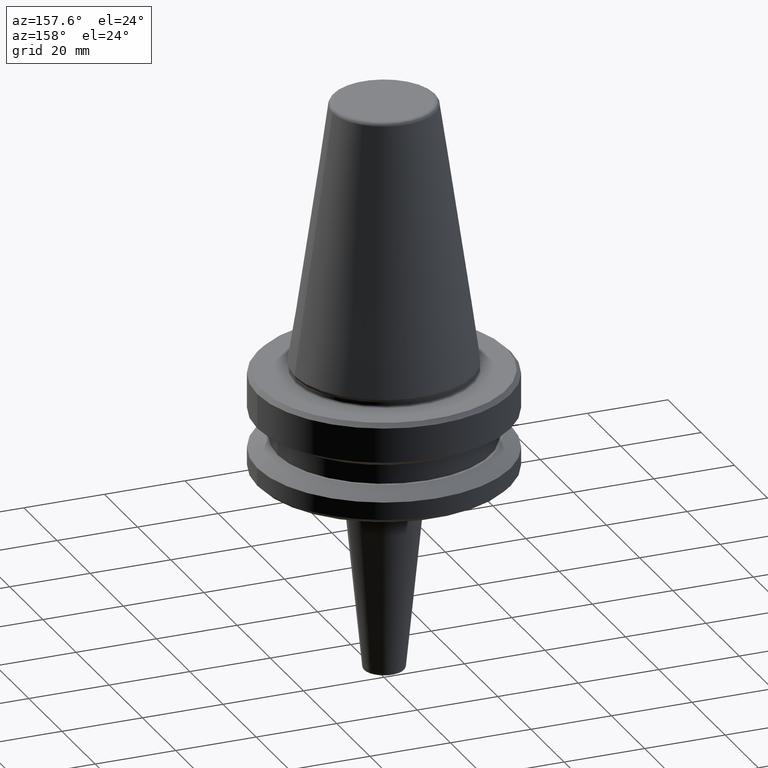
[diagram: clean part render]
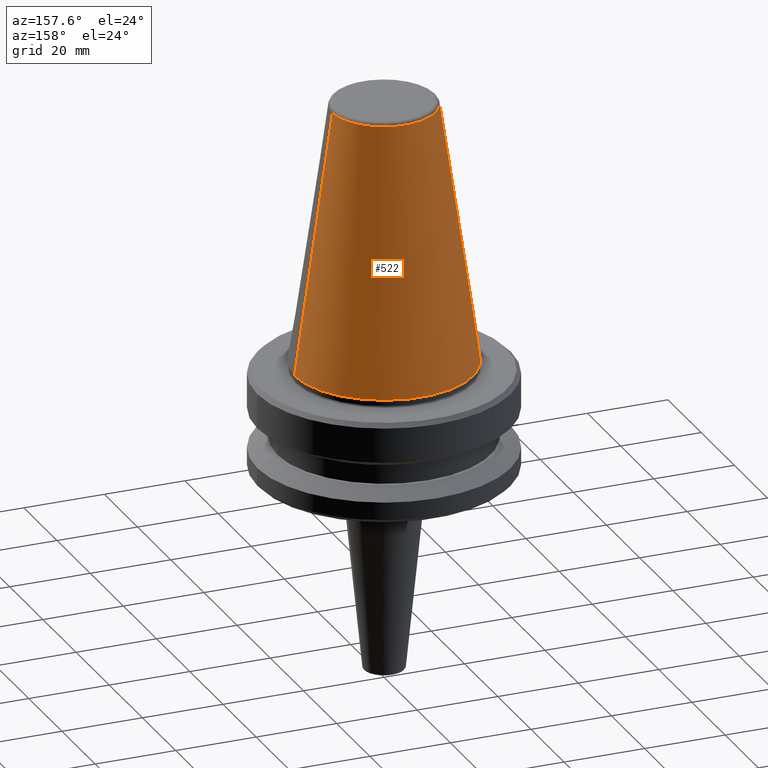
[diagram: same view with one face highlighted and labeled with its STEP entity id]
A machine part, auxiliary view. The second image highlights one B-rep face of the part: STEP entity #522.
In plain terms, the highlighted conical surface has half-angle 8.297 deg.
Its self-contained STEP definition (entity closure, byte-faithful):
#41 = VECTOR ( 'NONE', #225, 1000.000000000000000 ) ;
#44 = EDGE_CURVE ( 'NONE', #386, #204, #514, .T. ) ;
#58 = DIRECTION ( 'NONE',  ( 0.1443081888881795900, 1.767265616126607700E-017, -0.9895327920891826600 ) ) ;
#61 = LINE ( 'NONE', #636, #41 ) ;
#79 = VECTOR ( 'NONE', #58, 1000.000000000000000 ) ;
#81 = ORIENTED_EDGE ( 'NONE', *, *, #987, .F. ) ;
#98 = DIRECTION ( 'NONE',  ( 0.0000000000000000000, 0.0000000000000000000, -1.000000000000000000 ) ) ;
#130 = CARTESIAN_POINT ( 'NONE',  ( 0.0000000000000000000, 0.0000000000000000000, -0.8556918111122247000 ) ) ;
#164 = CARTESIAN_POINT ( 'NONE',  ( 12.81220206925736900, 2.145409868259749100E-015, -0.8556918111122247000 ) ) ;
#166 = CONICAL_SURFACE ( 'NONE', #704, 12.81220206925736900, 0.1448138077623198300 ) ;
#177 = DIRECTION ( 'NONE',  ( -1.000000000000000000, 0.0000000000000000000, 0.0000000000000000000 ) ) ;
#190 = FACE_OUTER_BOUND ( 'NONE', #777, .T. ) ;
#204 = VERTEX_POINT ( 'NONE', #887 ) ;
#225 = DIRECTION ( 'NONE',  ( -0.1443081888881795900, 0.0000000000000000000, -0.9895327920891826600 ) ) ;
#250 = EDGE_CURVE ( 'NONE', #204, #848, #488, .T. ) ;
#257 = EDGE_CURVE ( 'NONE', #731, #848, #61, .T. ) ;
#258 = ORIENTED_EDGE ( 'NONE', *, *, #257, .F. ) ;
#264 = AXIS2_PLACEMENT_3D ( 'NONE', #433, #1014, #520 ) ;
#308 = CARTESIAN_POINT ( 'NONE',  ( 12.81220206925736900, 1.569042225414513200E-015, -0.8556918111122247000 ) ) ;
#386 = VERTEX_POINT ( 'NONE', #164 ) ;
#416 = CIRCLE ( 'NONE', #264, 12.81220206925736900 ) ;
#433 = CARTESIAN_POINT ( 'NONE',  ( 0.0000000000000000000, 0.0000000000000000000, -0.8556918111122247000 ) ) ;
#441 = DIRECTION ( 'NONE',  ( -0.0000000000000000000, -0.0000000000000000000, 1.000000000000000000 ) ) ;
#488 = CIRCLE ( 'NONE', #612, 22.22499999999993700 ) ;
#514 = LINE ( 'NONE', #308, #79 ) ;
#520 = DIRECTION ( 'NONE',  ( 1.000000000000000000, 0.0000000000000000000, 0.0000000000000000000 ) ) ;
#522 = ADVANCED_FACE ( 'NONE', ( #190 ), #166, .T. ) ;
#612 = AXIS2_PLACEMENT_3D ( 'NONE', #873, #441, #983 ) ;
#636 = CARTESIAN_POINT ( 'NONE',  ( -12.81220206925736900, 0.0000000000000000000, -0.8556918111122247000 ) ) ;
#704 = AXIS2_PLACEMENT_3D ( 'NONE', #130, #98, #177 ) ;
#731 = VERTEX_POINT ( 'NONE', #741 ) ;
#741 = CARTESIAN_POINT ( 'NONE',  ( -12.81220206925736900, 0.0000000000000000000, -0.8556918111122247000 ) ) ;
#746 = CARTESIAN_POINT ( 'NONE',  ( -22.22499999999993700, 2.721777511104985000E-015, -65.40000000000057400 ) ) ;
#777 = EDGE_LOOP ( 'NONE', ( #81, #798, #956, #258 ) ) ;
#798 = ORIENTED_EDGE ( 'NONE', *, *, #44, .T. ) ;
#848 = VERTEX_POINT ( 'NONE', #746 ) ;
#873 = CARTESIAN_POINT ( 'NONE',  ( 0.0000000000000000000, 0.0000000000000000000, -65.40000000000057400 ) ) ;
#887 = CARTESIAN_POINT ( 'NONE',  ( 22.22499999999993700, 0.0000000000000000000, -65.40000000000057400 ) ) ;
#956 = ORIENTED_EDGE ( 'NONE', *, *, #250, .T. ) ;
#983 = DIRECTION ( 'NONE',  ( 1.000000000000000000, 0.0000000000000000000, 0.0000000000000000000 ) ) ;
#987 = EDGE_CURVE ( 'NONE', #386, #731, #416, .T. ) ;
#1014 = DIRECTION ( 'NONE',  ( -0.0000000000000000000, -0.0000000000000000000, 1.000000000000000000 ) ) ;